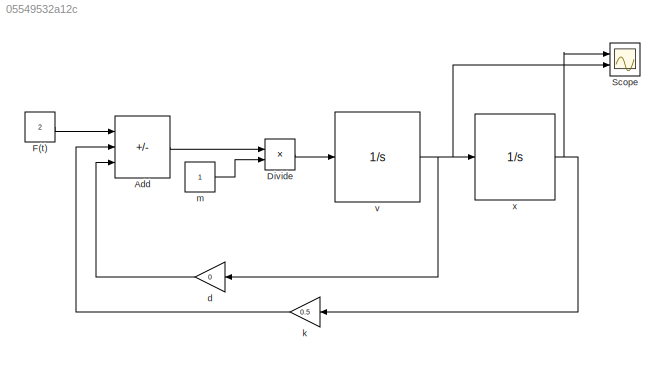
MODEL slx_05549532a12c
KIND model
CONFIG AbsTol = auto
CONFIG EnableMultiTasking = off
CONFIG FixedStep = 0.01
CONFIG MaxStep = auto
CONFIG MinStep = auto
CONFIG RelTol = 1e-3
CONFIG SampleTimeConstraint = Unconstrained
CONFIG SolverName = ode4
CONFIG StartTime = 0.0
CONFIG StopTime = 1000
BLOCK [Sum] Add
  IconShape = rectangular
  Inputs = +--
  Ports = [3, 1]
BLOCK [Product] Divide
  Inputs = */
  Ports = [2, 1]
BLOCK [Constant] F(t)
  Value = 2
BLOCK [Scope] Scope
  Floating = off
  NumInputPorts = 2
  Ports = [2]
  ScopeSpecificationString = Simulink.scopes.TimeScopeBlockCfg('CurrentConfiguration', extmgr.ConfigurationSet(extmgr.Configuration('Core','General UI',true),extmgr.Configuration('Core','Source UI',true),extmgr.Configuration('Sources','WiredSimulink',true),extmgr.Configuration('Visuals','Time Domain',true,'SerializedDisplays',{struct('MinYLimReal','-13.5','MaxYLimReal','21.5','YLabelReal','','MinYLimMag','0.00000','MaxYLimMag...<+1338ch>
BLOCK [Gain] d
  Gain = 0
BLOCK [Gain] k
  Gain = 0.5
BLOCK [Constant] m
BLOCK [Integrator] v
  Ports = [1, 1]
BLOCK [Integrator] x
  InitialCondition = -10
  Ports = [1, 1]
LINE Add:1 -> Divide:1
LINE Divide:1 -> v:1
LINE F(t):1 -> Add:1
LINE d:1 -> Add:3
LINE k:1 -> Add:2
LINE m:1 -> Divide:2
NET v:1 -> Scope:2, d:1, x:1
NET x:1 -> Scope:1, k:1
note: NET lines group one-source signal fan-out (src -> all destinations, sorted); 1:1 wires keep LINE
